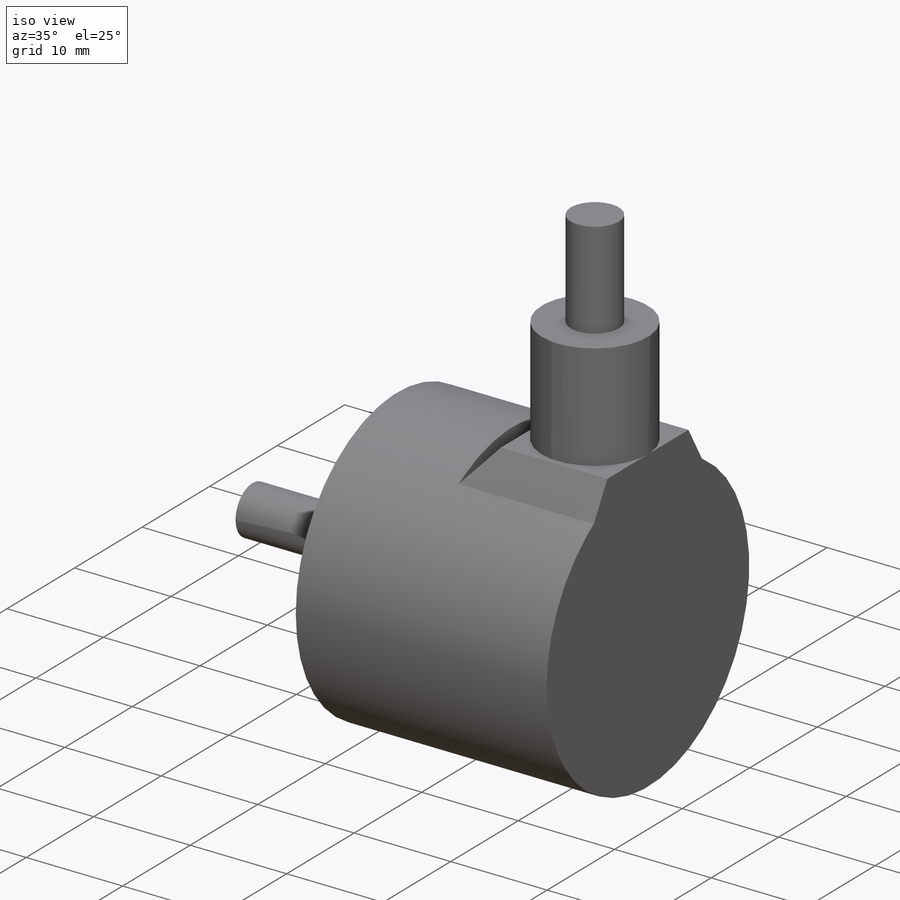
[diagram: iso view]
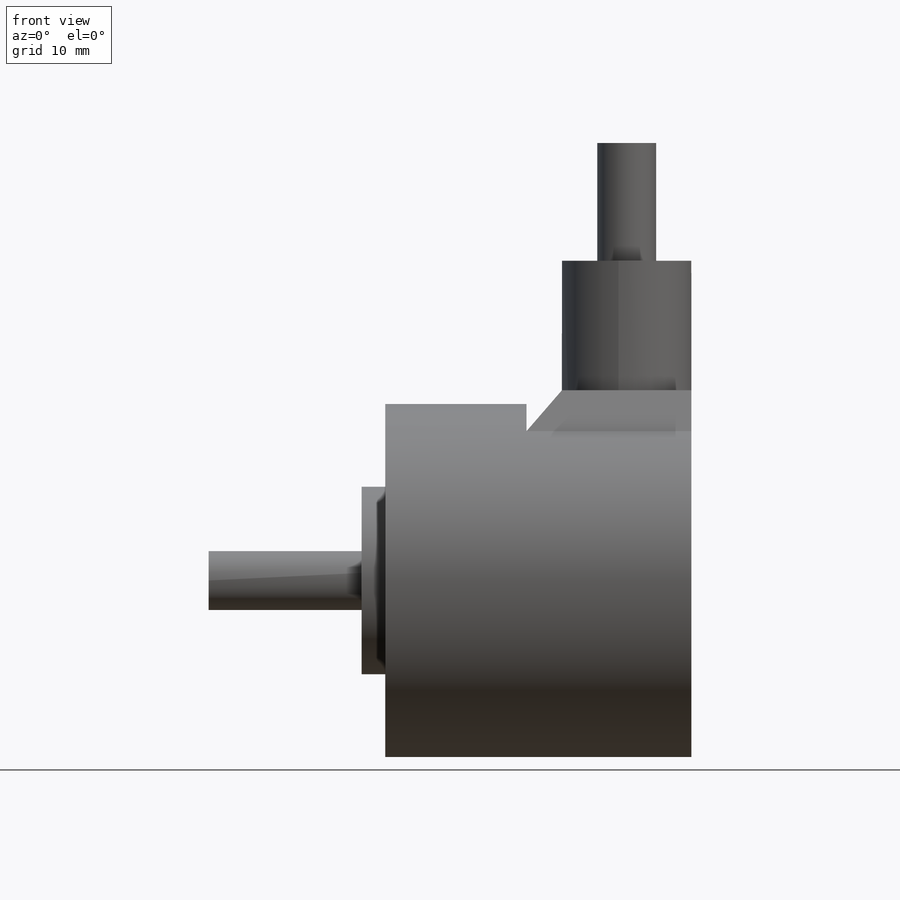
[diagram: front view]
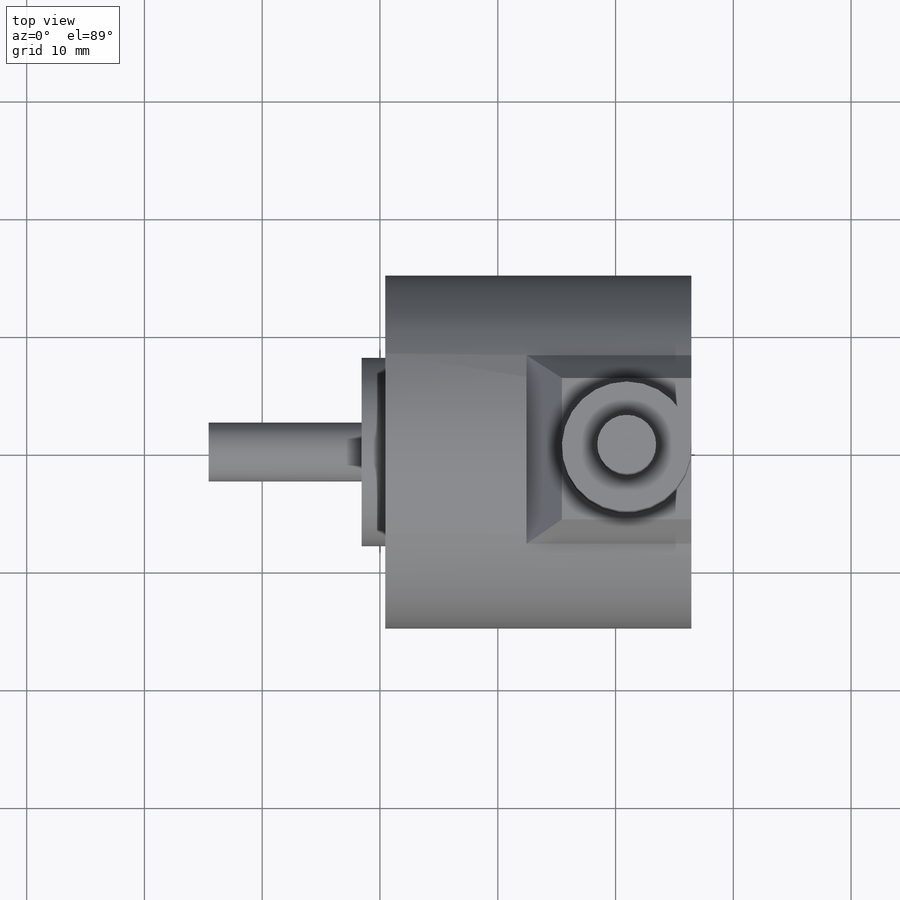
[diagram: top view]
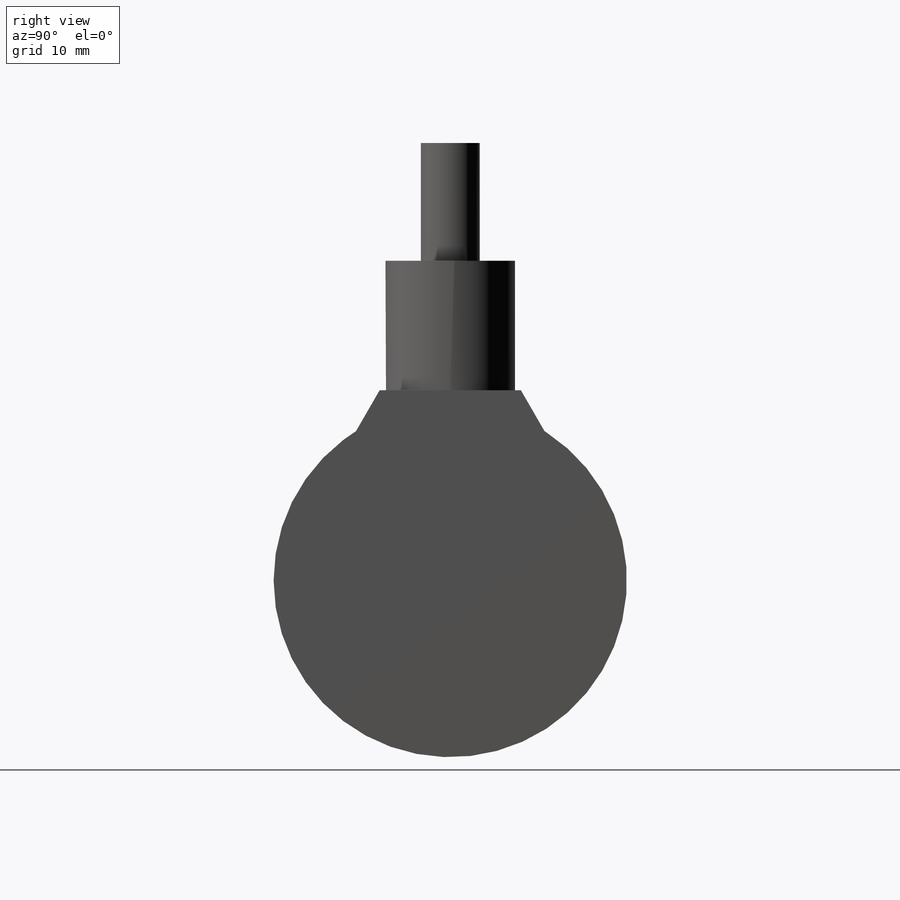
[diagram: right view]
SOLIDWORKS PART (.sldprt)
format: sldprt  version: not decoded by parser v0  size: 252,416 bytes
history: native  units: mm
features: sketch x7, extrude x4, plane x3, cut_extrude x2, material x1, revolve x1, pattern_circular x1 (+10 scaffold rows collapsed)
feature tree (29):
  scaffold x10  (default folders/planes/origin — collapsed)
  material  "1023 Tôle d'acier au carbone (SS)"
  plane  "Plan de face"
  plane  "Plan de dessus"
  plane  "Plan de droite"
  sketch  "Esquisse1"  dims[c1.D1=26.0mm c1.D2=15.0mm c1.D3=15.0mm c1.D4=3.0mm c1.D5=18.0mm c2.D4=12.5mm]
  revolve  "Révolution1"  Angle=360deg
  sketch  "Esquisse3"  dims[D2=3.0mm D1=12.0mm]
  cut_extrude  "Enlèv. mat.-Extru.1"  Depth=5mm
  pattern_circular  "Répétition circulaire1"  Count=3 Angle=120deg
  sketch  "Esquisse4"  dims[D1=16.0mm]
  extrude  "Boss.-Extru.1"  Depth=2mm
  sketch  "Esquisse3D1"  dims[c1.D1=16.0mm c1.D2=3.7321mm c1.D3=3.7321mm c2.D2=~4.875373mm c2.D3=~4.875373mm c3.D2=4.0mm c3.D3=~3.885938mm c3.D6=4.0mm c3.D4=12.0mm c3.D5=6.0mm c4.D3=~4.614335mm c4.D6=4.0mm]
  extrude  "Boss.-Extru.2"  Depth=14mm
  sketch  "Esquisse6"  dims[D1=11.0mm]
  cut_extrude  "Enlèv. mat.-Extru.2"  Depth=16mm
  sketch  "Esquisse7"  dims[c1.D1=11.0mm c1.D2=5.5mm c1.D3=~5.500101mm c2.D3=90.0deg c3.D3=6.0mm]
  extrude  "Boss.-Extru.4"  Depth=11mm
  sketch  "Esquisse8"  dims[D1=5.0mm]
  extrude  "Boss.-Extru.5"  Depth=10mm
decode coverage: 15 of 15 modeling features carry decoded parameters
note: ~ marks probable driven/reference dimensions
note: suppression state not decoded; provenance and decode notes live in map.json
